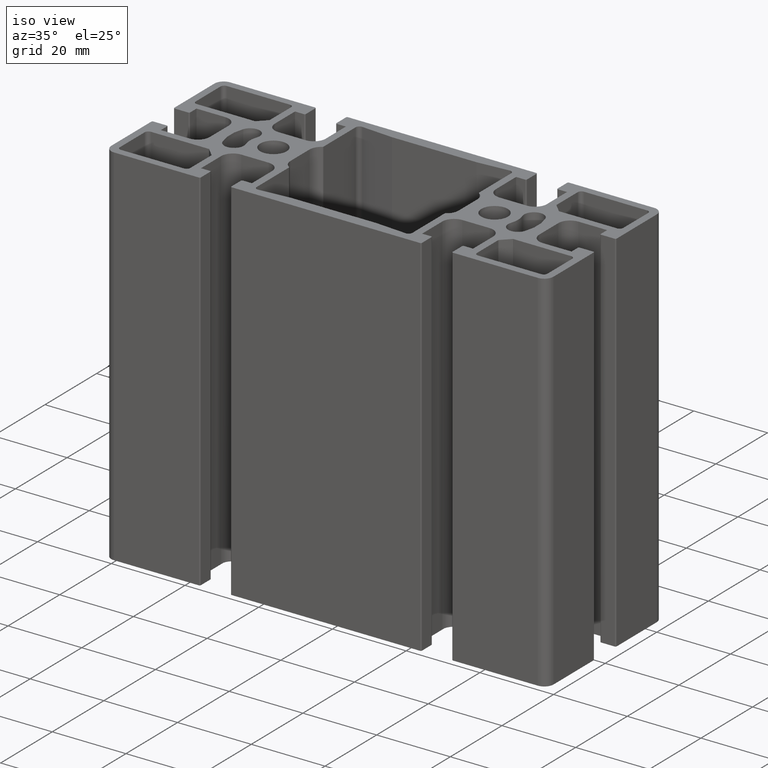
[diagram: clean part render]
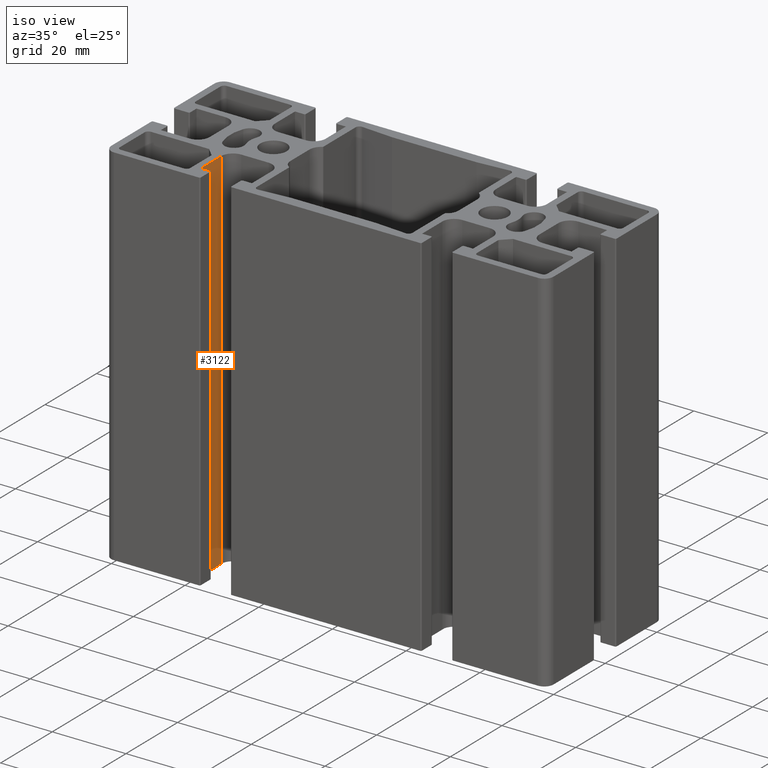
[diagram: same view with one face highlighted and labeled with its STEP entity id]
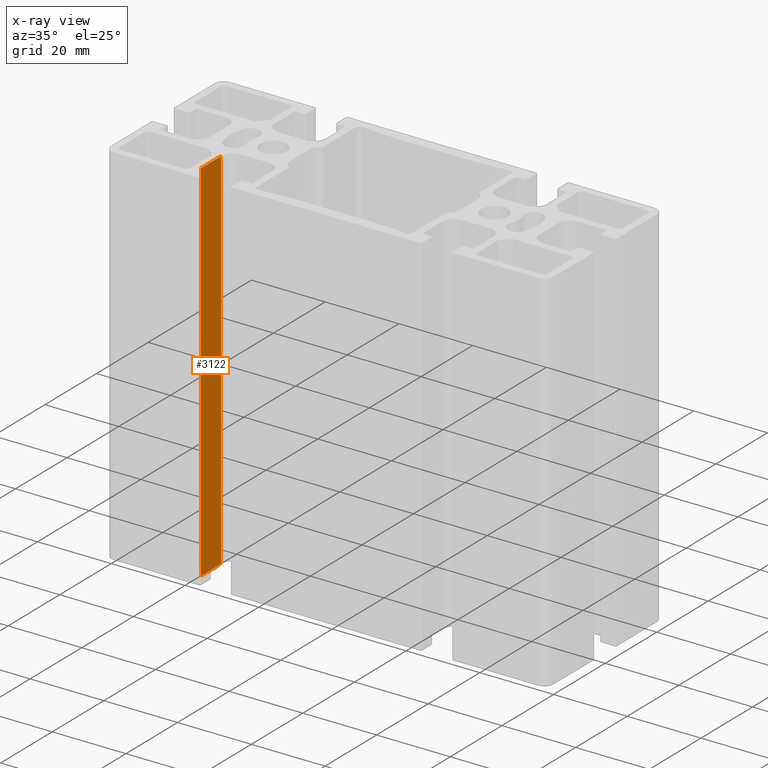
[diagram: x-ray of the same camera — body ghosted, the highlighted face saturated]
A machine part, iso view. The second image highlights one B-rep face of the part: STEP entity #3122.
The next image is the same camera in x-ray: the body ghosted, the highlighted face saturated — about 0% of this face is hidden behind the body in this view.
In plain terms, the highlighted planar face has unit normal (-1, 0, 0).
Its self-contained STEP definition (entity closure, byte-faithful):
#316=FACE_OUTER_BOUND('',#476,.T.);
#476=EDGE_LOOP('',(#2269,#2270,#2271,#2272));
#721=LINE('',#4841,#1045);
#722=LINE('',#4844,#1046);
#723=LINE('',#4846,#1047);
#724=LINE('',#4847,#1048);
#1045=VECTOR('',#3889,100.);
#1046=VECTOR('',#3892,7.8);
#1047=VECTOR('',#3893,7.8);
#1048=VECTOR('',#3894,100.);
#1369=VERTEX_POINT('',#4837);
#1370=VERTEX_POINT('',#4839);
#1371=VERTEX_POINT('',#4843);
#1372=VERTEX_POINT('',#4845);
#1741=EDGE_CURVE('',#1370,#1369,#721,.T.);
#1742=EDGE_CURVE('',#1369,#1371,#722,.T.);
#1743=EDGE_CURVE('',#1372,#1370,#723,.T.);
#1744=EDGE_CURVE('',#1372,#1371,#724,.T.);
#2269=ORIENTED_EDGE('',*,*,#1742,.F.);
#2270=ORIENTED_EDGE('',*,*,#1741,.F.);
#2271=ORIENTED_EDGE('',*,*,#1743,.F.);
#2272=ORIENTED_EDGE('',*,*,#1744,.T.);
#3008=PLANE('',#3340);
#3122=ADVANCED_FACE('',(#316),#3008,.F.);
#3340=AXIS2_PLACEMENT_3D('',#4842,#3890,#3891);
#3889=DIRECTION('',(0.,0.,1.));
#3890=DIRECTION('center_axis',(-1.,0.,0.));
#3891=DIRECTION('ref_axis',(0.,0.,1.));
#3892=DIRECTION('',(0.,1.,0.));
#3893=DIRECTION('',(0.,-1.,0.));
#3894=DIRECTION('',(0.,0.,1.));
#4837=CARTESIAN_POINT('',(-36.9,-18.2,100.));
#4839=CARTESIAN_POINT('',(-36.9,-18.2,0.));
#4841=CARTESIAN_POINT('',(-36.9,-18.2,0.));
#4842=CARTESIAN_POINT('Origin',(-36.9,-18.2,0.));
#4843=CARTESIAN_POINT('',(-36.9,-10.4,100.));
#4844=CARTESIAN_POINT('',(-36.9,-9.1,100.));
#4845=CARTESIAN_POINT('',(-36.9,-10.4,0.));
#4846=CARTESIAN_POINT('',(-36.9,-9.1,0.));
#4847=CARTESIAN_POINT('',(-36.9,-10.4,0.));